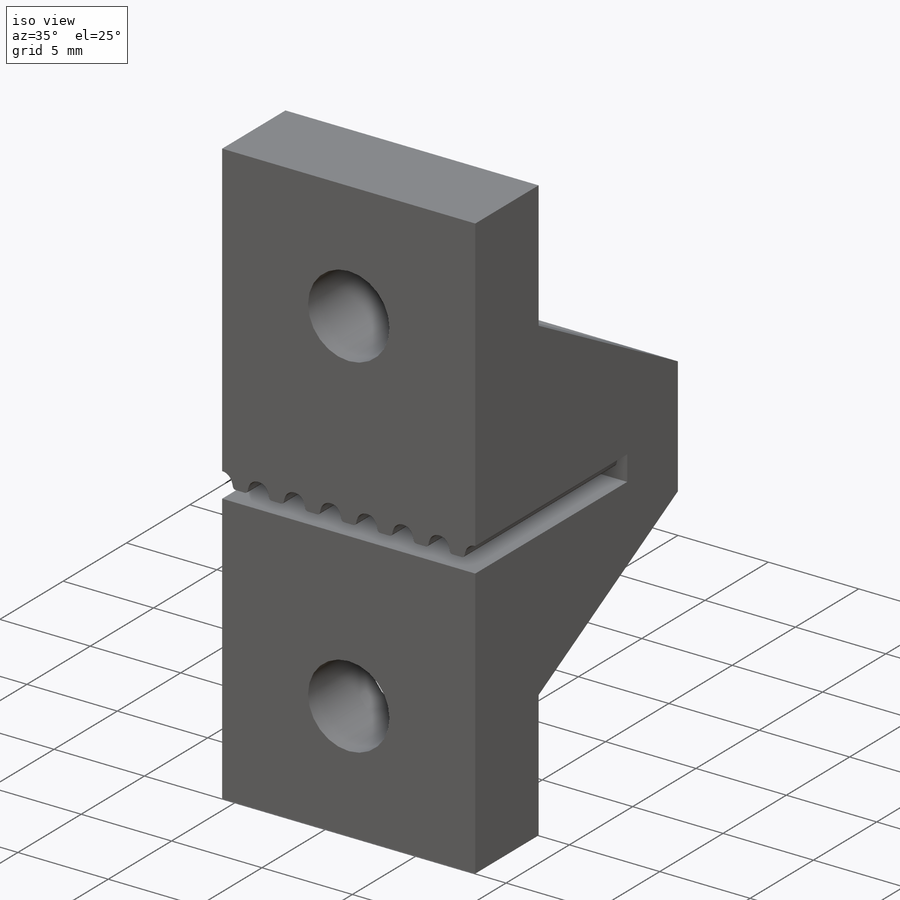
[diagram: iso view]
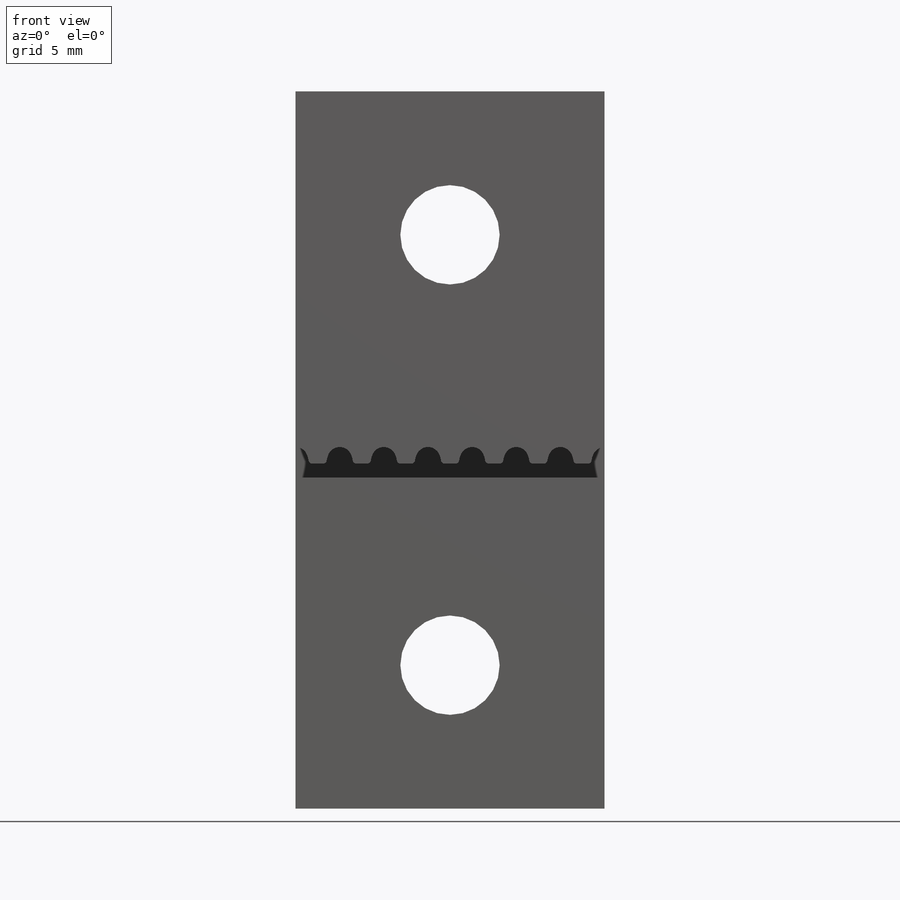
[diagram: front view]
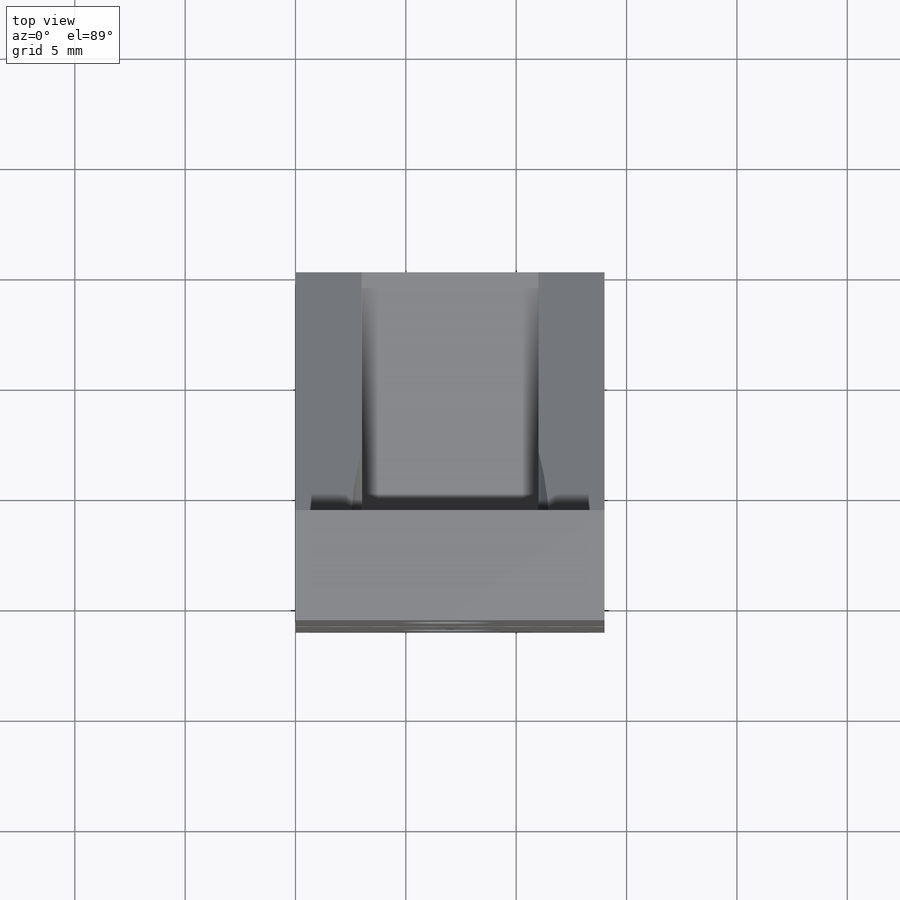
[diagram: top view]
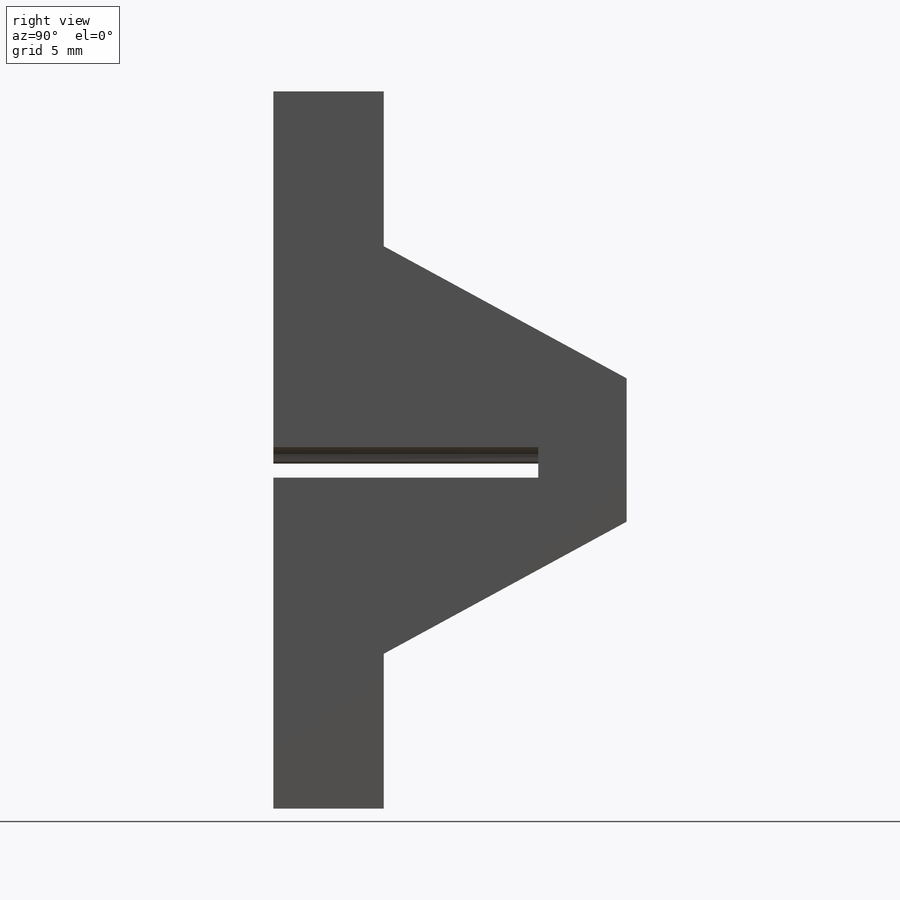
[diagram: right view]
SOLIDWORKS PART (.sldprt)
format: sldprt  version: not decoded by parser v0  size: 314,368 bytes
history: native  units: mm
features: sketch x7, extrude x4, cut_extrude x3, material x1, pattern_linear x1, plane x1, mirror x1 (+12 scaffold rows collapsed)
feature tree (30):
  scaffold x12  (default folders/planes/origin — collapsed)
  material  "ABS"
  sketch  "Sketch3"  dims[D1=14.0mm D2=6.5mm D3=2.0mm]
  extrude  "Boss-Extrude2"  Depth=16mm
  sketch  "Sketch1"  dims[D1=0.555mm D2=1.0mm D3=0.15mm D4=0.4mm D5=0.75mm D6=2.0mm D7=1.38mm]
  cut_extrude  "Cut-Extrude1"  Depth=19mm
  pattern_linear  "LPattern2"  Count1=7 Count2=1 Spacing1=2mm Spacing2=10mm
  sketch  "Sketch4"  dims[c1.D5=4.5mm c1.D1=7.0mm c1.D2=7.0mm c2.D1=3.5mm c2.D3=18.0mm c2.D4=6.5mm c2.D2=23.0mm c2.D6=12.0mm c3.D1=6.0mm c3.D7=22.1mm c3.D6=4.0mm c4.D1=13.0mm c4.D2=7.0mm]
  extrude  "Boss-Extrude3"  Depth=5mm
  sketch  "Sketch6"  dims[D1=4.0mm]
  cut_extrude  "Cut-Extrude3"  [1 undecoded]
  sketch  "Sketch7"
  extrude  "Boss-Extrude4"  Depth=3mm
  extrude  "Boss-Extrude5"  [1 undecoded]
  sketch  "Sketch7<2>"  dims[D1=3.0mm D19=11.0mm]
  sketch  "Sketch5"  dims[D1=9.0mm]
  cut_extrude  "Cut-Extrude2"  Depth=0.1mm
  plane  "Plane1"
  mirror  "Mirror1"
decode coverage: 12 of 16 modeling features carry decoded parameters
note: 2 parameter values undecoded
note: suppression state not decoded; provenance and decode notes live in map.json
